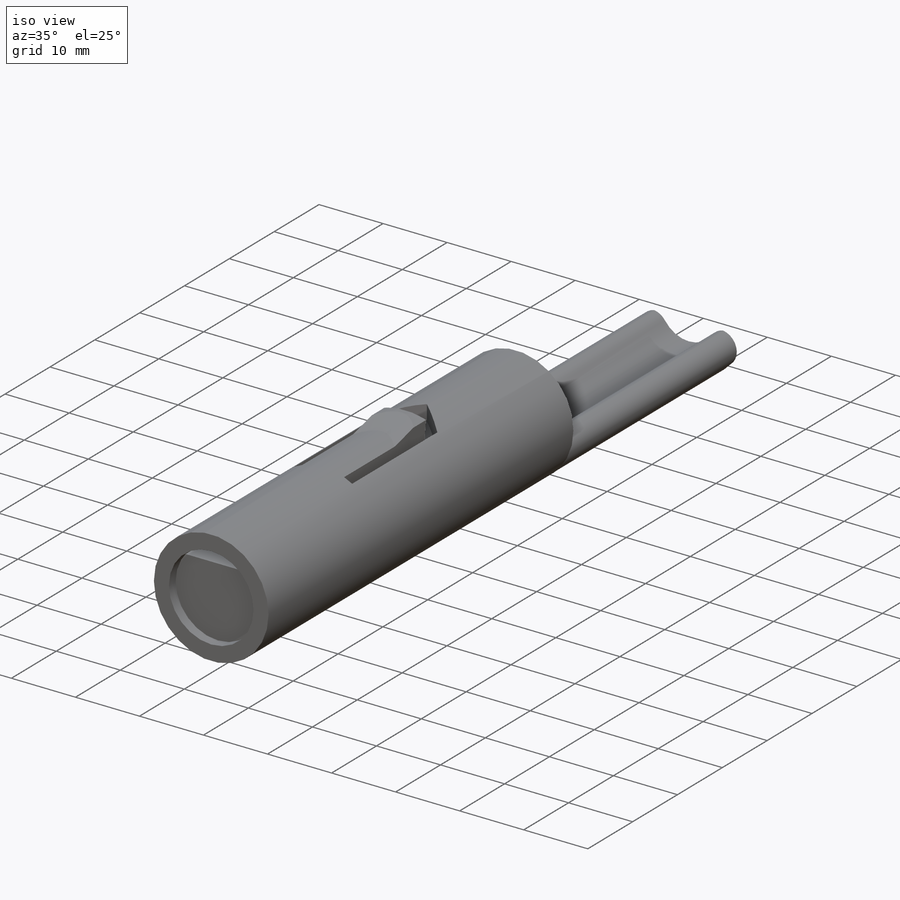
[diagram: iso view]
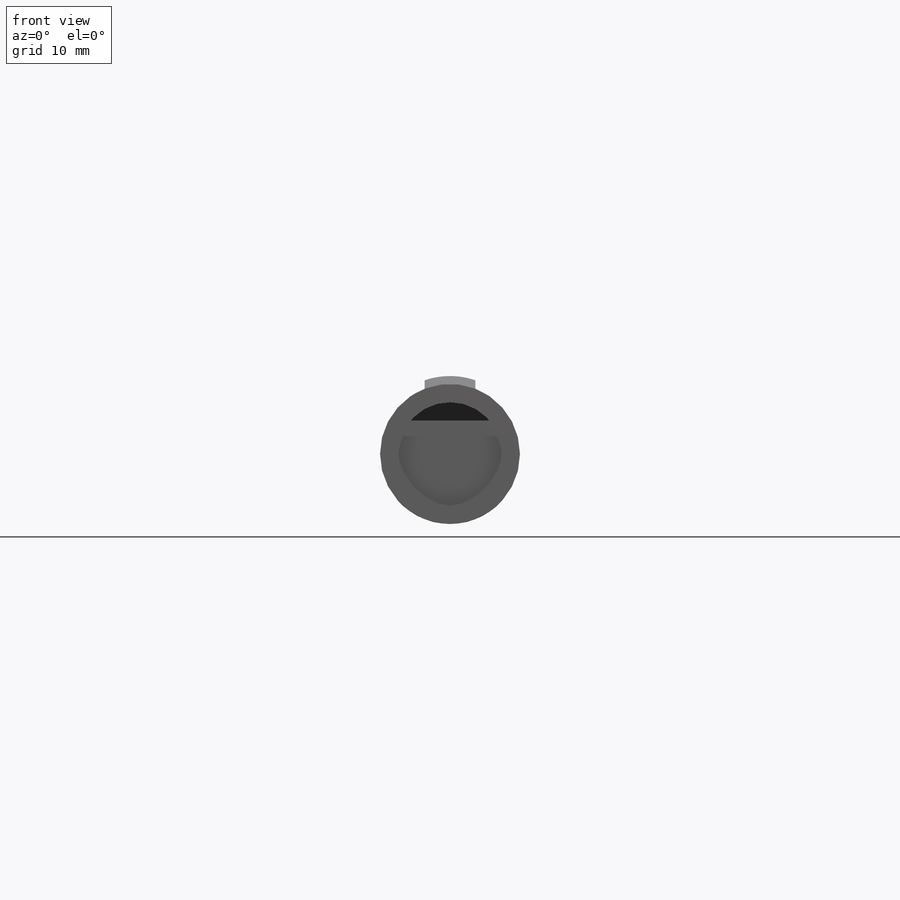
[diagram: front view]
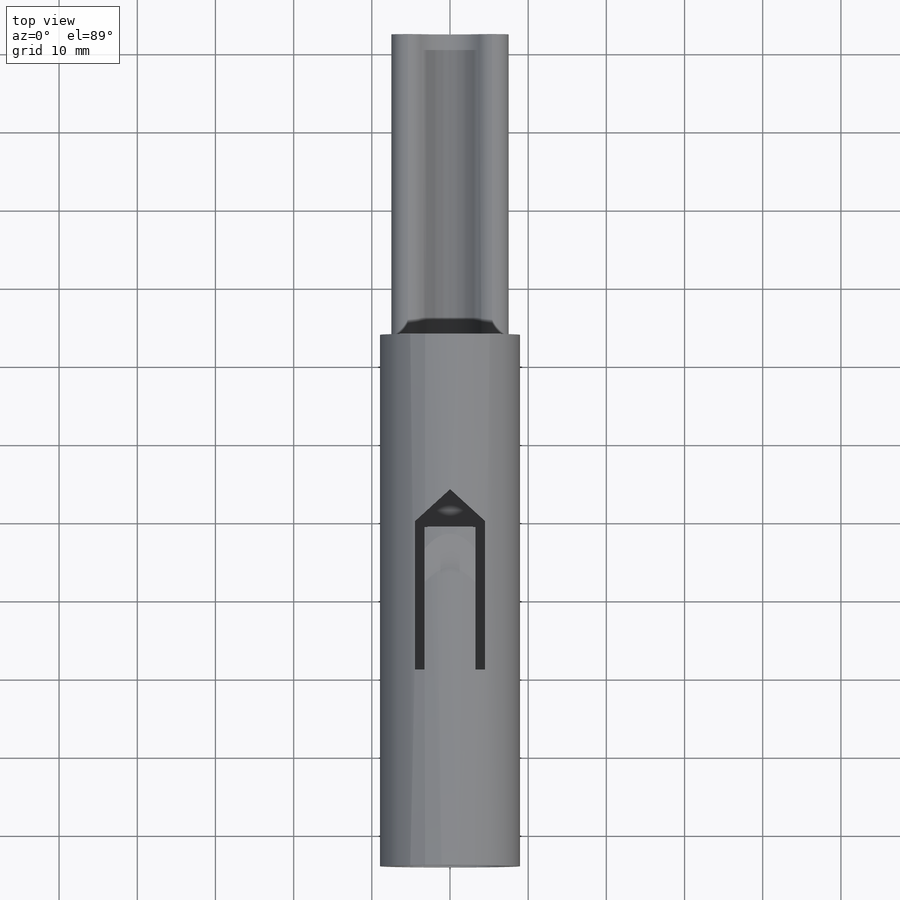
[diagram: top view]
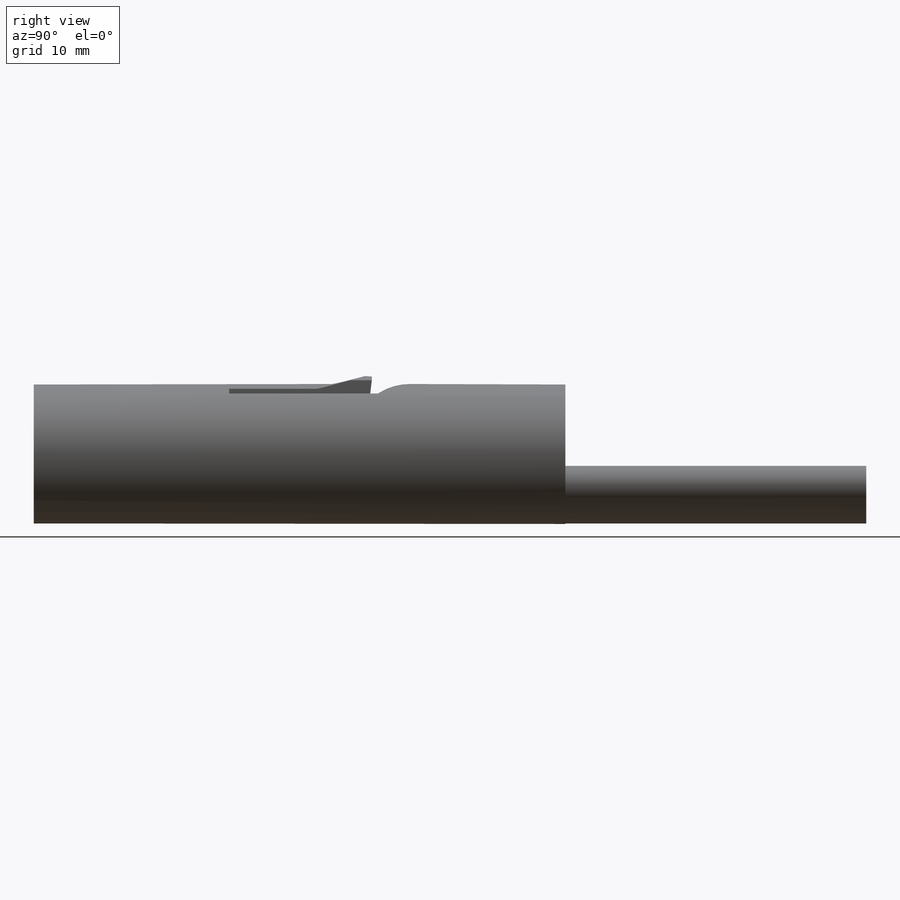
[diagram: right view]
SOLIDWORKS PART (.sldprt)
format: sldprt  version: not decoded by parser v0  size: 785,408 bytes
history: native  units: mm
features: sketch x37, extrude x19, cut_extrude x17, fillet x6, material x1 (+13 scaffold rows collapsed)
feature tree (93):
  scaffold x13  (default folders/planes/origin — collapsed)
  material  "Material <not specified>"
  sketch  "Sketch1"  dims[D1=~5.821981mm]
  extrude  "Boss-Extrude1"  Depth=62mm
  sketch  "Sketch2"
  extrude  "Boss-Extrude2"  Depth=7mm
  sketch  "Sketch4"  dims[D1=~6.661395mm]
  cut_extrude  "Cut-Extrude2"  Depth=1.5mm
  sketch  "Sketch5"
  extrude  "Boss-Extrude4"  Depth=10mm
  sketch  "Sketch6"
  extrude  "Boss-Extrude5"  Depth=32.3mm
  sketch  "Sketch7"
  cut_extrude  "Cut-Extrude3"  Depth=32.3mm
  sketch  "Sketch9"  dims[c1.D1=3.0mm c1.D5=9.0mm c2.D1=9.08mm c2.D2=8.1mm c2.D3=7.75mm c2.D4=15.5mm]
  cut_extrude  "Cut-Extrude4"  Depth=32.3mm
  fillet  "Fillet5"  Radius=3mm
  sketch  "Sketch11"  dims[D1=8.9mm]
  sketch  "Sketch16"  dims[D1=11.11mm D2=6.0mm]
  cut_extrude  "Cut-Extrude9"  Depth=32.3mm
  extrude  "Boss-Extrude8"  Depth=2mm
  sketch  "Sketch13"  dims[D1=30.0mm D2=19.0mm D3=9.0mm D4=4.5mm D5=6.5mm D6=1.25mm D7=18.0mm]
  cut_extrude  "Cut-Extrude7"  Depth=5mm
  sketch  "Sketch14"
  cut_extrude  "Cut-Extrude8"  Depth=0.5mm
  sketch  "Sketch15"
  sketch  "Sketch17"  dims[D1=5.0mm D2=10.0mm D3=3.75mm]
  cut_extrude  "Cut-Extrude11"  Depth=33mm
  sketch  "Sketch18"
  extrude  "Boss-Extrude9"  Depth=33mm
  sketch  "Sketch20"  dims[D1=1.25mm]
  extrude  "Boss-Extrude10"  Depth=0.25mm
  sketch  "Sketch21"  dims[D1=1.0mm]
  extrude  "Boss-Extrude11"  Depth=0.25mm
  sketch  "Sketch25"
  cut_extrude  "Cut-Extrude18"  Depth=32.3mm
  sketch  "Sketch26"  dims[c1.D1=~4.543117mm c1.D2=9.0mm c1.D3=17.0mm c2.D1=2.5mm c2.D4=18.0mm]
  extrude  "Boss-Extrude13"  Depth=32.3mm
  fillet  "Fillet8"  Radius=1.5mm
  sketch  "Sketch29"
  extrude  "Boss-Extrude16"  Depth=0.5mm
  fillet  "Fillet9"  Radius=10mm
  fillet  "Fillet10"  Radius=10mm
  sketch  "Sketch30"
  extrude  "Boss-Extrude17"  Depth=60mm
  sketch  "Sketch31"  dims[D1=~4.249967mm D2=~4.249967mm]
  cut_extrude  "Cut-Extrude19"  Depth=59mm
  fillet  "Fillet11"  Radius=15mm
  sketch  "Sketch32"
  cut_extrude  "Cut-Extrude21"  Depth=32.5mm
  sketch  "Sketch33"  dims[D1=1.5mm]
  extrude  "Boss-Extrude18"  Depth=32.5mm
  sketch  "Sketch34"  dims[D1=~7.912993mm]
  cut_extrude  "Cut-Extrude23"  Depth=32.5mm
  fillet  "Fillet17"  Radius=2.5mm
  sketch  "Sketch36"
  extrude  "Boss-Extrude19"  Depth=7.5mm
  sketch  "Sketch37"
  extrude  "Boss-Extrude20"  Depth=7.5mm
  sketch  "Sketch38"
  cut_extrude  "Cut-Extrude24"  Depth=17.5mm
  sketch  "Sketch40"
  cut_extrude  "Cut-Extrude26"  Depth=50mm
  sketch  "Sketch41"
  extrude  "Boss-Extrude21"  Depth=13.5mm
  sketch  "Sketch42"
  extrude  "Boss-Extrude22"  Depth=13.5mm
  sketch  "Sketch44"
  extrude  "Boss-Extrude23"  Depth=50mm
  sketch  "Sketch45"
  cut_extrude  "Cut-Extrude27"  Depth=17mm
  sketch  "Sketch46"
  extrude  "Boss-Extrude24"  Depth=3mm
  sketch  "Sketch47"
  cut_extrude  "Cut-Extrude28"  Depth=48.5mm
  sketch  "Sketch48"
  cut_extrude  "Cut-Extrude29"  Depth=9mm
  sketch  "Sketch49"
  cut_extrude  "Cut-Extrude30"  Depth=9mm
  sketch  "Sketch50"
  extrude  "Boss-Extrude25"  Depth=10mm
decode coverage: 55 of 79 modeling features carry decoded parameters
note: ~ marks probable driven/reference dimensions
note: suppression state not decoded; provenance and decode notes live in map.json
